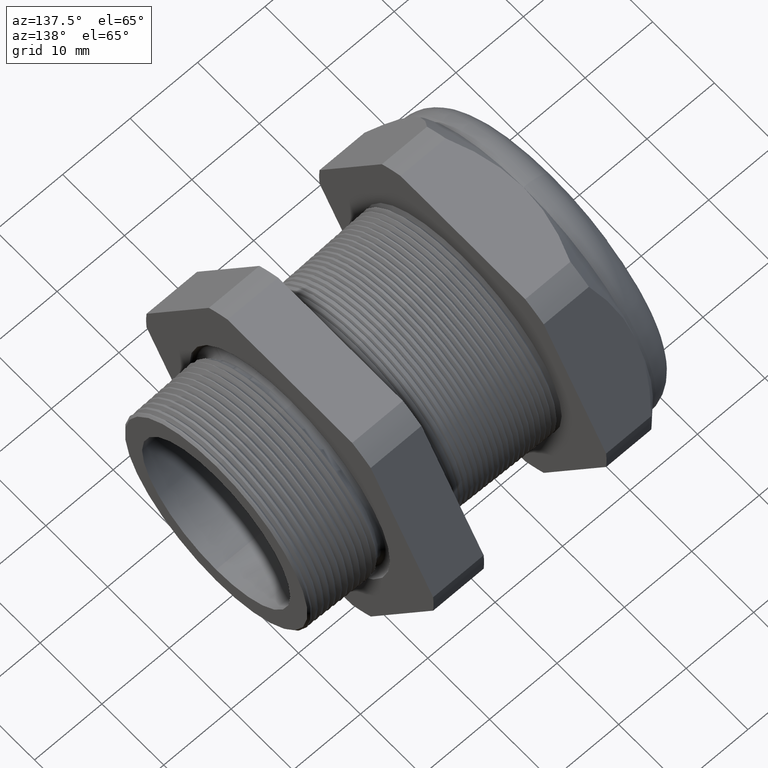
[diagram: clean part render]
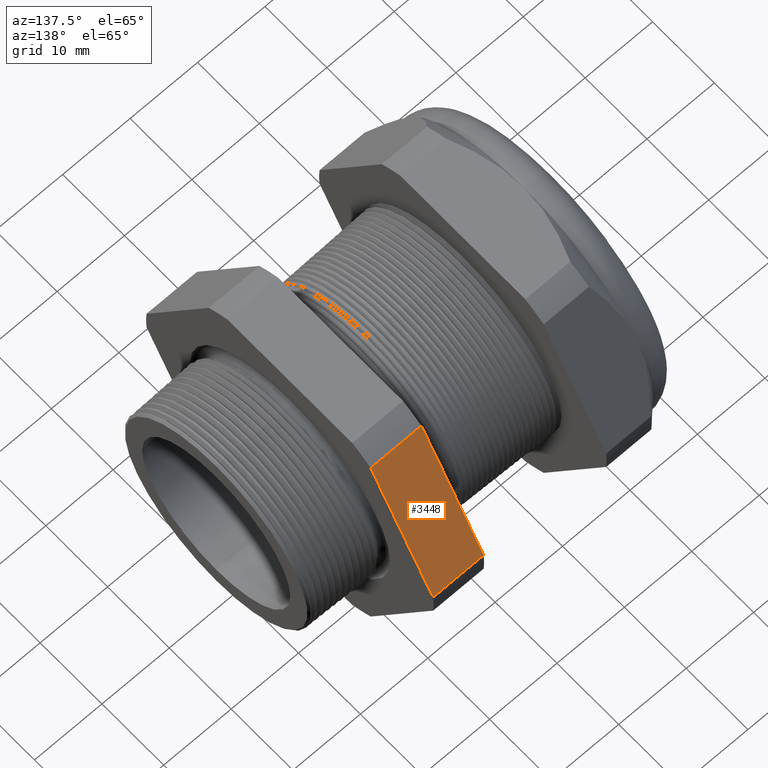
[diagram: same view with one face highlighted and labeled with its STEP entity id]
A machine part, auxiliary view. The second image highlights one B-rep face of the part: STEP entity #3448.
In plain terms, the highlighted planar face has unit normal (0, 0.866, 0.5).
Its self-contained STEP definition (entity closure, byte-faithful):
#262 = DIRECTION ( 'NONE',  ( -1.000000000000000000, 0.0000000000000000000, 0.0000000000000000000 ) ) ;
#263 = VECTOR ( 'NONE', #262, 39.37007874015748100 ) ;
#264 = CARTESIAN_POINT ( 'NONE',  ( 0.1200000000000000900, 0.5157418318598050400, 0.7567089436301731600 ) ) ;
#265 = LINE ( 'NONE', #264, #263 ) ;
#266 = DIRECTION ( 'NONE',  ( 0.0000000000000000000, -0.5000000000000000000, 0.8660254037844386000 ) ) ;
#267 = DIRECTION ( 'NONE',  ( 0.0000000000000000000, 0.8660254037844387100, 0.5000000000000001100 ) ) ;
#268 = CARTESIAN_POINT ( 'NONE',  ( 0.1200000000000000900, 0.5157418318598050400, 0.7567089436301731600 ) ) ;
#269 = AXIS2_PLACEMENT_3D ( 'NONE', #268, #267, #266 ) ;
#270 = PLANE ( 'NONE',  #269 ) ;
#271 = FACE_OUTER_BOUND ( 'NONE', #3037, .T. ) ;
#306 = DIRECTION ( 'NONE',  ( -1.000000000000000000, 0.0000000000000000000, 0.0000000000000000000 ) ) ;
#307 = VECTOR ( 'NONE', #306, 39.37007874015748100 ) ;
#308 = CARTESIAN_POINT ( 'NONE',  ( 0.1200000000000000900, 0.9132000843845192700, 0.06829105636982749100 ) ) ;
#312 = LINE ( 'NONE', #308, #307 ) ;
#2490 = VERTEX_POINT ( 'NONE', #5706 ) ;
#2497 = EDGE_CURVE ( 'NONE', #2500, #2498, #5693, .T. ) ;
#2498 = VERTEX_POINT ( 'NONE', #5684 ) ;
#2500 = VERTEX_POINT ( 'NONE', #5683 ) ;
#2509 = EDGE_CURVE ( 'NONE', #2490, #2695, #5737, .T. ) ;
#2695 = VERTEX_POINT ( 'NONE', #6087 ) ;
#3037 = EDGE_LOOP ( 'NONE', ( #3470, #3471, #3469, #3467 ) ) ;
#3448 = ADVANCED_FACE ( 'NONE', ( #271 ), #270, .T. ) ;
#3454 = EDGE_CURVE ( 'NONE', #2498, #2490, #265, .T. ) ;
#3467 = ORIENTED_EDGE ( 'NONE', *, *, #2509, .F. ) ;
#3468 = EDGE_CURVE ( 'NONE', #2500, #2695, #312, .T. ) ;
#3469 = ORIENTED_EDGE ( 'NONE', *, *, #3468, .T. ) ;
#3470 = ORIENTED_EDGE ( 'NONE', *, *, #3454, .F. ) ;
#3471 = ORIENTED_EDGE ( 'NONE', *, *, #2497, .F. ) ;
#5683 = CARTESIAN_POINT ( 'NONE',  ( -0.3099999999999998300, 0.9132000843845192700, 0.06829105636982749100 ) ) ;
#5684 = CARTESIAN_POINT ( 'NONE',  ( -0.3099999999999998300, 0.5157418318598050400, 0.7567089436301731600 ) ) ;
#5685 = DIRECTION ( 'NONE',  ( 0.0000000000000000000, -0.5000000000000000000, 0.8660254037844386000 ) ) ;
#5686 = VECTOR ( 'NONE', #5685, 39.37007874015748100 ) ;
#5687 = CARTESIAN_POINT ( 'NONE',  ( -0.3100000000000000000, 1.126970958122162300, -0.3019709581221616300 ) ) ;
#5693 = LINE ( 'NONE', #5687, #5686 ) ;
#5706 = CARTESIAN_POINT ( 'NONE',  ( -0.6052755905511806300, 0.5157418318598050400, 0.7567089436301731600 ) ) ;
#5734 = DIRECTION ( 'NONE',  ( 0.0000000000000000000, 0.5000000000000000000, -0.8660254037844386000 ) ) ;
#5735 = VECTOR ( 'NONE', #5734, 39.37007874015748100 ) ;
#5736 = CARTESIAN_POINT ( 'NONE',  ( -0.6052755905511809600, 1.126970958122162300, -0.3019709581221616300 ) ) ;
#5737 = LINE ( 'NONE', #5736, #5735 ) ;
#6087 = CARTESIAN_POINT ( 'NONE',  ( -0.6052755905511806300, 0.9132000843845192700, 0.06829105636982749100 ) ) ;